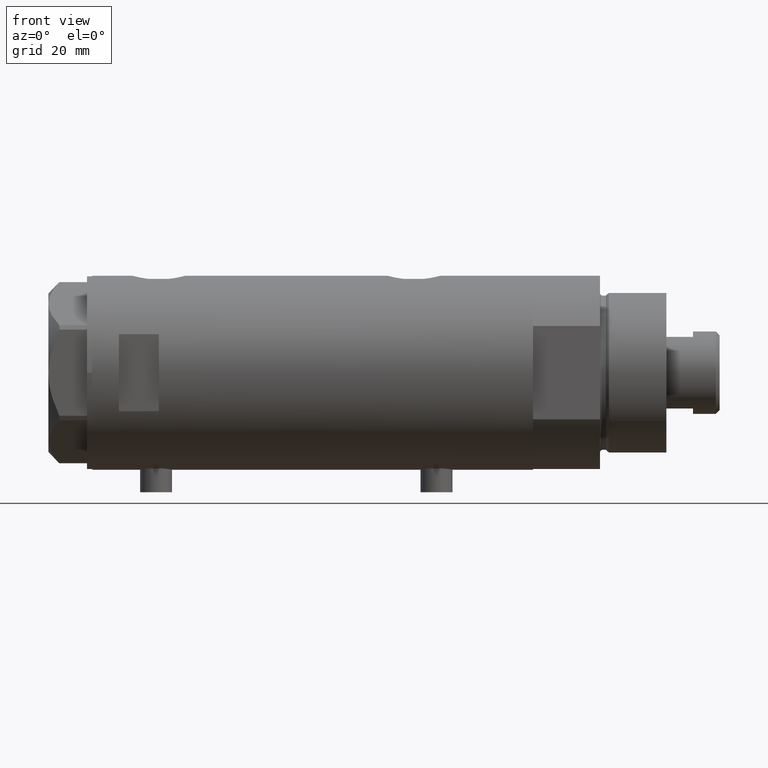
[diagram: clean part render]
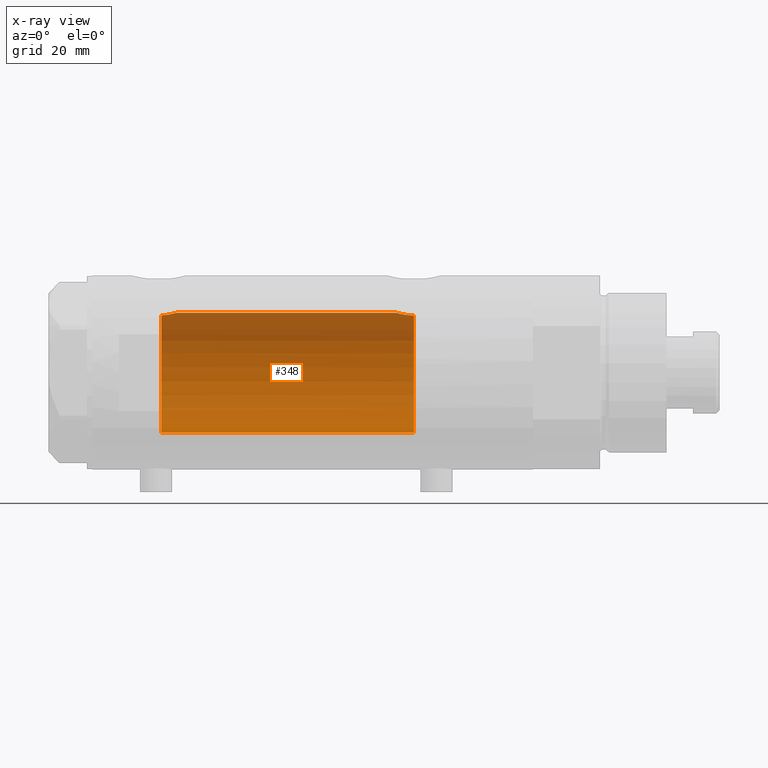
[diagram: x-ray — body ghosted, one internal face saturated and labeled with its STEP entity id]
A machine part, front view, then the same camera in x-ray: the body is ghosted and one INTERNAL B-rep face — a face not visible from any outside direction — is saturated and labeled: STEP entity #348.
In plain terms, the highlighted cylindrical surface (partial cylindrical patch) has radius 22.5 mm, axis along (1, 0, -0).
Its self-contained STEP definition (entity closure, byte-faithful):
#3 = CARTESIAN_POINT ( 'NONE',  ( 22.34487948028763071, 2.662928462767973237, 51.87031008565885060 ) ) ;
#25 = CARTESIAN_POINT ( 'NONE',  ( 21.65875036540690601, 6.096384986856001831, 55.39350157007414310 ) ) ;
#95 = CARTESIAN_POINT ( 'NONE',  ( 22.20005338163447206, 3.677069589895788582, 52.42964083487822791 ) ) ;
#152 = CARTESIAN_POINT ( 'NONE',  ( 22.43846943857365872, 1.717024460055897039, -31.73305400432138867 ) ) ;
#307 = CARTESIAN_POINT ( 'NONE',  ( 21.51635656889892800, 6.580000000000002736, -38.10000000000000142 ) ) ;
#321 = CIRCLE ( 'NONE', #2356, 22.50000000000000355 ) ;
#331 = VERTEX_POINT ( 'NONE', #765 ) ;
#348 = ADVANCED_FACE ( 'NONE', ( #2155 ), #3537, .F. ) ;
#570 = VERTEX_POINT ( 'NONE', #2333 ) ;
#626 = CARTESIAN_POINT ( 'NONE',  ( 21.53958216864942088, 6.503568251352486840, 56.90000000000000568 ) ) ;
#715 = CARTESIAN_POINT ( 'NONE',  ( 22.41810768969941847, 1.927264596308556399, 51.60552498238021002 ) ) ;
#732 = CARTESIAN_POINT ( 'NONE',  ( 22.30007684883240060, 3.011608117356138425, 52.03690468166832517 ) ) ;
#755 = CARTESIAN_POINT ( 'NONE',  ( 21.55996057785741726, 6.435875139617805551, 56.51641692772588499 ) ) ;
#765 = CARTESIAN_POINT ( 'NONE',  ( -22.50000000000000355, 0.000000000000000000, -38.09999999999999432 ) ) ;
#777 = CARTESIAN_POINT ( 'NONE',  ( 21.71097692913352617, 5.908765693315405798, -35.17224774632267525 ) ) ;
#784 = CARTESIAN_POINT ( 'NONE',  ( 22.03020271031499888, 4.583618747547679284, 53.16326305060303525 ) ) ;
#837 = EDGE_CURVE ( 'NONE', #570, #2159, #1400, .T. ) ;
#862 = CARTESIAN_POINT ( 'NONE',  ( 21.94924653817634663, 4.949760619110008975, -33.75922104935666113 ) ) ;
#908 = CARTESIAN_POINT ( 'NONE',  ( 21.51635656889892800, 6.580000000000002736, -38.10000000000000142 ) ) ;
#962 = DIRECTION ( 'NONE',  ( 1.000000000000000000, 0.000000000000000000, 0.000000000000000000 ) ) ;
#996 = ORIENTED_EDGE ( 'NONE', *, *, #1948, .F. ) ;
#1107 = ORIENTED_EDGE ( 'NONE', *, *, #837, .T. ) ;
#1113 = CARTESIAN_POINT ( 'NONE',  ( 22.48752745446833501, 0.8626660575027224054, -31.56226479722901956 ) ) ;
#1178 = ORIENTED_EDGE ( 'NONE', *, *, #2424, .F. ) ;
#1204 = CARTESIAN_POINT ( 'NONE',  ( 22.14109776314135658, 4.018961829707383693, -32.87237162697964266 ) ) ;
#1249 = EDGE_CURVE ( 'NONE', #2159, #331, #2305, .T. ) ;
#1340 = VERTEX_POINT ( 'NONE', #2501 ) ;
#1400 = CIRCLE ( 'NONE', #2051, 22.50000000000000355 ) ;
#1441 = CARTESIAN_POINT ( 'NONE',  ( 22.50000000000000355, 0.000000000000000000, 51.32000000000000028 ) ) ;
#1484 = CARTESIAN_POINT ( 'NONE',  ( 21.58771824211648038, 6.342145538420561834, 56.13591924784430631 ) ) ;
#1537 = CARTESIAN_POINT ( 'NONE',  ( 22.40265168709897736, 2.128491761919761416, -31.85897789146818582 ) ) ;
#1592 = CARTESIAN_POINT ( 'NONE',  ( -22.50000000000000355, 0.000000000000000000, 82.90000000000000568 ) ) ;
#1702 = B_SPLINE_CURVE_WITH_KNOTS ( 'NONE', 3,
 ( #3945, #3261, #1113, #152, #1537, #2919, #4301, #1204, #2593, #3965, #862, #1896, #3283, #2499, #777, #2164, #3198, #4344, #2989, #1951, #4063, #908 ),
 .UNSPECIFIED., .F., .F.,
 ( 4, 2, 2, 2, 2, 2, 2, 2, 2, 2, 4 ),
 ( 0.02068572879290663316, 0.02197833177876012262, 0.02327093476461361554, 0.02456353775046710500, 0.02585614073632059445, 0.02650244222924734785, 0.02714874372217410126, 0.02844134670802762888, 0.02973394969388114956, 0.03038025118680791337, 0.03102655267973467718 ),
 .UNSPECIFIED. ) ;
#1798 = CARTESIAN_POINT ( 'NONE',  ( 22.48961798642638499, 0.7839168256130851775, 51.35525408827136573 ) ) ;
#1819 = CARTESIAN_POINT ( 'NONE',  ( 22.45973433770731020, 1.359115216171840279, 51.45894713662338660 ) ) ;
#1888 = EDGE_CURVE ( 'NONE', #331, #2293, #321, .T. ) ;
#1896 = CARTESIAN_POINT ( 'NONE',  ( 21.88602906110443058, 5.222191658358659616, -34.09110908501991588 ) ) ;
#1948 = EDGE_CURVE ( 'NONE', #1340, #2293, #1702, .T. ) ;
#1951 = CARTESIAN_POINT ( 'NONE',  ( 21.51969523957628283, 6.569111213712935715, -37.66380209493692632 ) ) ;
#2014 = CARTESIAN_POINT ( 'NONE',  ( 21.54850992350584349, 6.473999851071386757, 56.70769989068857342 ) ) ;
#2049 = CARTESIAN_POINT ( 'NONE',  ( 0.000000000000000000, 0.000000000000000000, 56.90000000000000568 ) ) ;
#2051 = AXIS2_PLACEMENT_3D ( 'NONE', #2049, #2678, #962 ) ;
#2078 = CARTESIAN_POINT ( 'NONE',  ( 21.60406082673097927, 6.286405977953741342, 55.94666670735803393 ) ) ;
#2155 = FACE_OUTER_BOUND ( 'NONE', #3257, .T. ) ;
#2159 = VERTEX_POINT ( 'NONE', #3272 ) ;
#2164 = CARTESIAN_POINT ( 'NONE',  ( 21.61738790272778843, 6.242481197317898634, -35.97475324290417831 ) ) ;
#2168 = CARTESIAN_POINT ( 'NONE',  ( 22.14421896774458887, 3.996618394220599946, 52.65850411031065192 ) ) ;
#2262 = ORIENTED_EDGE ( 'NONE', *, *, #4253, .F. ) ;
#2293 = VERTEX_POINT ( 'NONE', #307 ) ;
#2305 = LINE ( 'NONE', #1592, #3936 ) ;
#2333 = CARTESIAN_POINT ( 'NONE',  ( 21.53958216864942088, 6.503568251352486840, 56.90000000000000568 ) ) ;
#2356 = AXIS2_PLACEMENT_3D ( 'NONE', #3877, #2840, #2884 ) ;
#2424 = EDGE_CURVE ( 'NONE', #570, #3168, #4140, .T. ) ;
#2499 = CARTESIAN_POINT ( 'NONE',  ( 21.76592257976932032, 5.705656113855375189, -34.79484284637812408 ) ) ;
#2501 = CARTESIAN_POINT ( 'NONE',  ( 22.50000000000000355, 8.058593785575293352E-16, -31.51999999999999957 ) ) ;
#2593 = CARTESIAN_POINT ( 'NONE',  ( 22.07793805162484446, 4.348669293362732446, -33.14321183416397076 ) ) ;
#2597 = LINE ( 'NONE', #3969, #4240 ) ;
#2678 = DIRECTION ( 'NONE',  ( 0.000000000000000000, 0.000000000000000000, 1.000000000000000000 ) ) ;
#2840 = DIRECTION ( 'NONE',  ( 0.000000000000000000, 0.000000000000000000, -1.000000000000000000 ) ) ;
#2869 = CARTESIAN_POINT ( 'NONE',  ( 21.85834467356397681, 5.340944334976049923, 54.03736885285049851 ) ) ;
#2884 = DIRECTION ( 'NONE',  ( -1.000000000000000000, 0.000000000000000000, 0.000000000000000000 ) ) ;
#2919 = CARTESIAN_POINT ( 'NONE',  ( 22.31307373663816662, 2.921646833104065255, -32.18858613169776817 ) ) ;
#2924 = DIRECTION ( 'NONE',  ( -0.000000000000000000, -0.000000000000000000, -1.000000000000000000 ) ) ;
#2989 = CARTESIAN_POINT ( 'NONE',  ( 21.53277870401796434, 6.526097350343573744, -37.23193080670432664 ) ) ;
#3135 = CARTESIAN_POINT ( 'NONE',  ( 21.80257506594836059, 5.561983929949493088, 54.36293428743496747 ) ) ;
#3168 = VERTEX_POINT ( 'NONE', #4436 ) ;
#3182 = CARTESIAN_POINT ( 'NONE',  ( 21.97198143592078878, 4.852313884858198811, 53.43898489903312310 ) ) ;
#3191 = CARTESIAN_POINT ( 'NONE',  ( 0.000000000000000000, 0.000000000000000000, 82.90000000000000568 ) ) ;
#3198 = CARTESIAN_POINT ( 'NONE',  ( 21.58039466125149630, 6.367443256290042264, -36.38625661091905528 ) ) ;
#3257 = EDGE_LOOP ( 'NONE', ( #2262, #1178, #1107, #4479, #3732, #996 ) ) ;
#3261 = CARTESIAN_POINT ( 'NONE',  ( 22.50000000000000711, 0.4308769323960432440, -31.52000000000001378 ) ) ;
#3272 = CARTESIAN_POINT ( 'NONE',  ( -22.50000000000000355, 0.000000000000000000, 56.90000000000000568 ) ) ;
#3283 = CARTESIAN_POINT ( 'NONE',  ( 21.85514244747245272, 5.349553529053609147, -34.26278474480277225 ) ) ;
#3526 = CARTESIAN_POINT ( 'NONE',  ( 21.70300828301578733, 5.938634204148080187, 55.04008341356918521 ) ) ;
#3537 = CYLINDRICAL_SURFACE ( 'NONE', #3869, 22.50000000000000355 ) ;
#3732 = ORIENTED_EDGE ( 'NONE', *, *, #1888, .T. ) ;
#3779 = DIRECTION ( 'NONE',  ( -0.000000000000000000, -0.000000000000000000, -1.000000000000000000 ) ) ;
#3839 = CARTESIAN_POINT ( 'NONE',  ( 22.50000000000000355, 0.3947970979781463829, 51.31999999999999318 ) ) ;
#3869 = AXIS2_PLACEMENT_3D ( 'NONE', #3191, #3779, #3914 ) ;
#3877 = CARTESIAN_POINT ( 'NONE',  ( 0.000000000000000000, 0.000000000000000000, -38.09999999999999432 ) ) ;
#3883 = CARTESIAN_POINT ( 'NONE',  ( 22.44738562510071489, 1.549445000368393277, 51.50203276325539292 ) ) ;
#3914 = DIRECTION ( 'NONE',  ( -1.000000000000000000, 0.000000000000000000, 0.000000000000000000 ) ) ;
#3936 = VECTOR ( 'NONE', #4068, 1000.000000000000000 ) ;
#3945 = CARTESIAN_POINT ( 'NONE',  ( 22.50000000000000355, 8.058593785575293352E-16, -31.51999999999999957 ) ) ;
#3965 = CARTESIAN_POINT ( 'NONE',  ( 21.98170506496023435, 4.804030677015544981, -33.59847163284562299 ) ) ;
#3969 = CARTESIAN_POINT ( 'NONE',  ( 22.50000000000000355, 2.755455298081545172E-15, 82.90000000000000568 ) ) ;
#4063 = CARTESIAN_POINT ( 'NONE',  ( 21.51635656889893156, 6.580000000000002736, -37.88312317022887754 ) ) ;
#4068 = DIRECTION ( 'NONE',  ( -0.000000000000000000, -0.000000000000000000, -1.000000000000000000 ) ) ;
#4140 = B_SPLINE_CURVE_WITH_KNOTS ( 'NONE', 3,
 ( #626, #2014, #755, #1484, #2078, #25, #3526, #3135, #2869, #3182, #784, #2168, #95, #732, #3, #4197, #715, #3883, #1819, #1798, #3839, #1441 ),
 .UNSPECIFIED., .F., .F.,
 ( 4, 2, 2, 2, 2, 2, 2, 2, 2, 2, 4 ),
 ( 0.03202894702871426219, 0.03261250414633486139, 0.03319606126395546059, 0.03436317549919667980, 0.03553028973443790595, 0.03669740396967912516, 0.03786451820492034437, 0.03903163244016157052, 0.03961518955778217665, 0.04019874667540278973, 0.04136586091064400894 ),
 .UNSPECIFIED. ) ;
#4197 = CARTESIAN_POINT ( 'NONE',  ( 22.40112435233285026, 2.115025885874699973, 51.66613662186026090 ) ) ;
#4240 = VECTOR ( 'NONE', #2924, 1000.000000000000000 ) ;
#4253 = EDGE_CURVE ( 'NONE', #3168, #1340, #2597, .T. ) ;
#4301 = CARTESIAN_POINT ( 'NONE',  ( 22.25860915731085754, 3.306748059303223464, -32.39512753277105617 ) ) ;
#4344 = CARTESIAN_POINT ( 'NONE',  ( 21.54248662244912893, 6.494090541481658541, -37.01861175082140676 ) ) ;
#4436 = CARTESIAN_POINT ( 'NONE',  ( 22.50000000000000355, 0.000000000000000000, 51.32000000000000028 ) ) ;
#4479 = ORIENTED_EDGE ( 'NONE', *, *, #1249, .T. ) ;